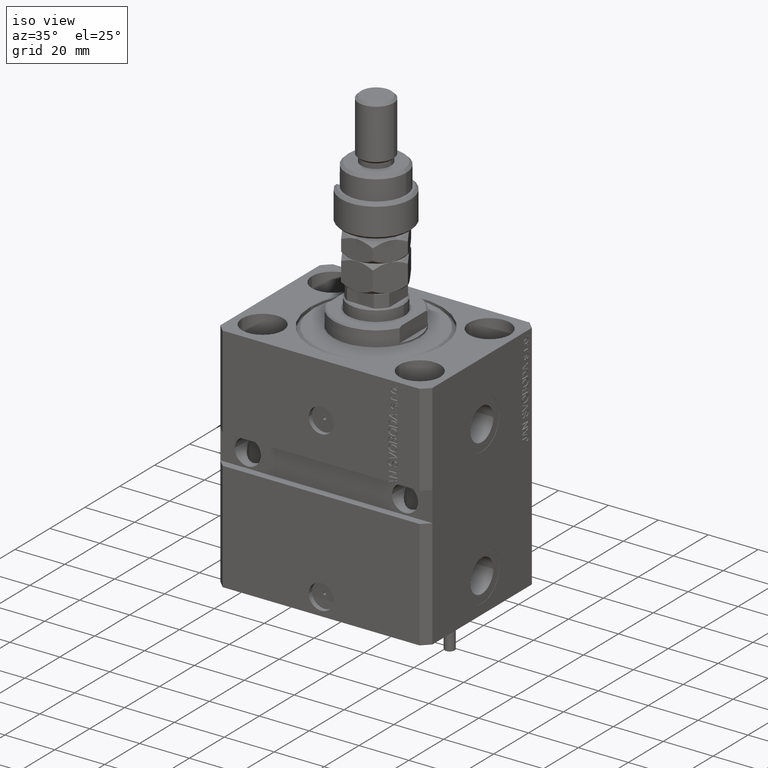
[diagram: clean part render]
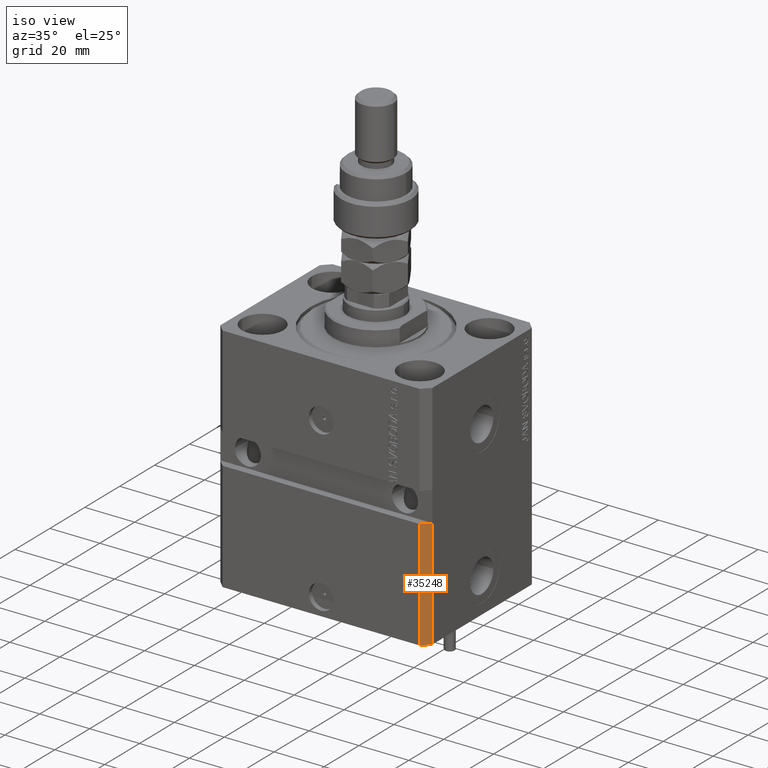
[diagram: same view with one face highlighted and labeled with its STEP entity id]
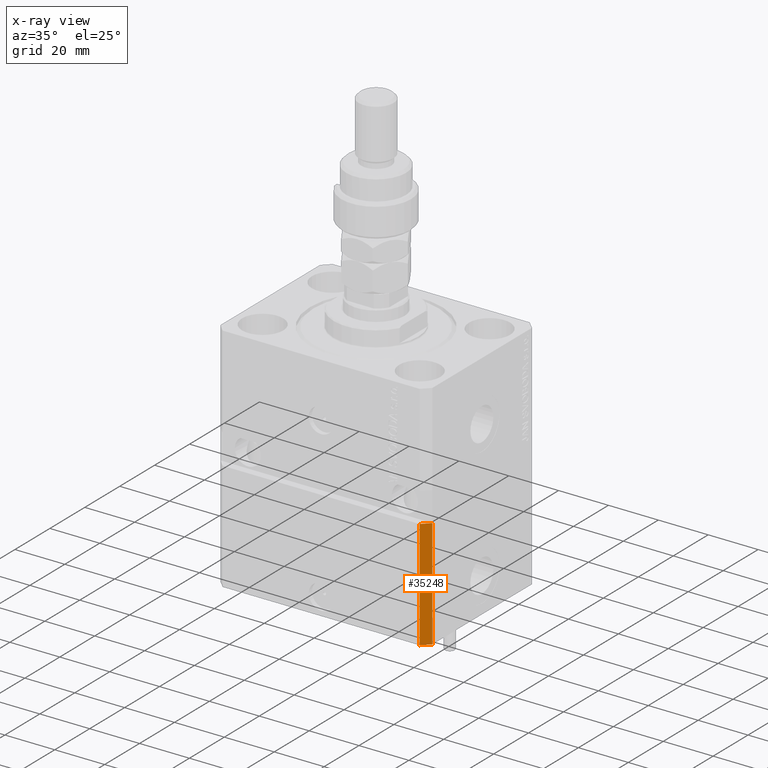
[diagram: x-ray of the same camera — body ghosted, the highlighted face saturated]
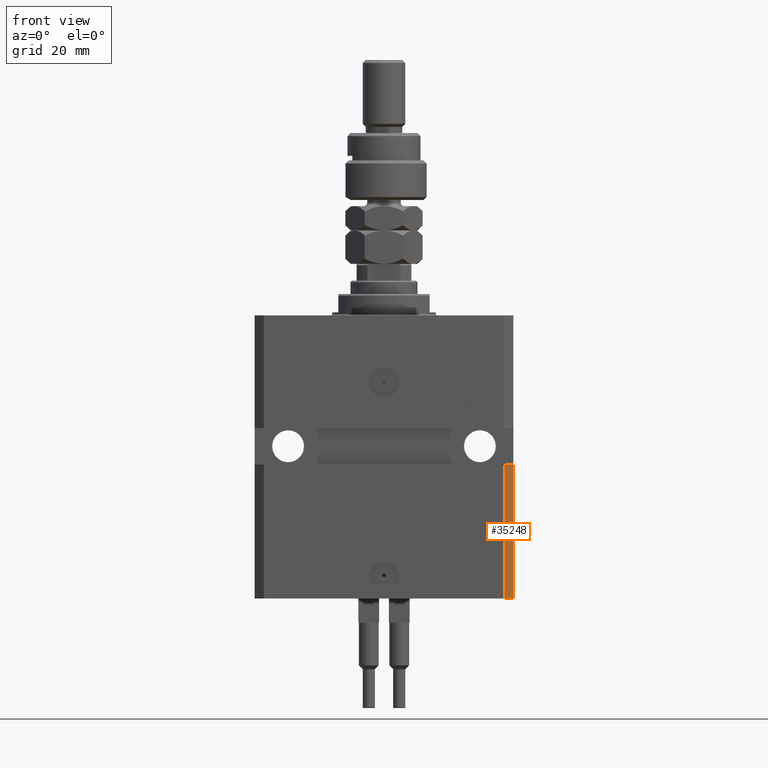
[diagram: same view with one face highlighted and labeled with its STEP entity id]
A machine part, iso view. The second image highlights one B-rep face of the part: STEP entity #35248.
The next image is the same camera in x-ray: the body ghosted, the highlighted face saturated — about 0% of this face is hidden behind the body in this view.
A second angle (front view) of the same face is appended — the face is thin or edge-on in the first view.
In plain terms, the highlighted planar face has unit normal (0.7071, -0.7071, 0).
Its self-contained STEP definition (entity closure, byte-faithful):
#942 = CARTESIAN_POINT ( 'NONE',  ( 39.50000000000000711, -31.50000000000000000, -93.00000000000000000 ) ) ;
#1875 = CARTESIAN_POINT ( 'NONE',  ( 39.50000000000000711, -31.50000000000000000, -48.99999999999999289 ) ) ;
#2702 = EDGE_CURVE ( 'NONE', #24890, #38991, #48162, .T. ) ;
#3266 = ORIENTED_EDGE ( 'NONE', *, *, #24350, .T. ) ;
#3327 = VECTOR ( 'NONE', #49147, 1000.000000000000000 ) ;
#5358 = ORIENTED_EDGE ( 'NONE', *, *, #2702, .T. ) ;
#5930 = DIRECTION ( 'NONE',  ( 0.7071067811865483499, 0.7071067811865466846, 0.000000000000000000 ) ) ;
#6916 = EDGE_LOOP ( 'NONE', ( #14657, #11072, #5358, #3266 ) ) ;
#11072 = ORIENTED_EDGE ( 'NONE', *, *, #20529, .F. ) ;
#12559 = VECTOR ( 'NONE', #21529, 1000.000000000000000 ) ;
#14657 = ORIENTED_EDGE ( 'NONE', *, *, #37455, .F. ) ;
#17291 = LINE ( 'NONE', #1875, #27943 ) ;
#18854 = CARTESIAN_POINT ( 'NONE',  ( 39.50000000000000711, -31.50000000000000000, -93.00000000000000000 ) ) ;
#20529 = EDGE_CURVE ( 'NONE', #24890, #46405, #24926, .T. ) ;
#21131 = CARTESIAN_POINT ( 'NONE',  ( 42.50000000000000711, -28.50000000000000355, -93.00000000000000000 ) ) ;
#21386 = VERTEX_POINT ( 'NONE', #24307 ) ;
#21529 = DIRECTION ( 'NONE',  ( 0.000000000000000000, 0.000000000000000000, 1.000000000000000000 ) ) ;
#21794 = CARTESIAN_POINT ( 'NONE',  ( 39.50000000000000711, -31.50000000000000000, -93.00000000000000000 ) ) ;
#24307 = CARTESIAN_POINT ( 'NONE',  ( 42.50000000000001421, -28.49999999999999289, -48.99999999999999289 ) ) ;
#24329 = CARTESIAN_POINT ( 'NONE',  ( 39.50000000000000711, -31.50000000000000000, -93.00000000000000000 ) ) ;
#24350 = EDGE_CURVE ( 'NONE', #38991, #21386, #25830, .T. ) ;
#24890 = VERTEX_POINT ( 'NONE', #18854 ) ;
#24926 = LINE ( 'NONE', #21794, #12559 ) ;
#25830 = LINE ( 'NONE', #21131, #3327 ) ;
#27943 = VECTOR ( 'NONE', #45304, 1000.000000000000000 ) ;
#32063 = PLANE ( 'NONE',  #49589 ) ;
#32831 = DIRECTION ( 'NONE',  ( 0.7071067811865466846, -0.7071067811865483499, 0.000000000000000000 ) ) ;
#33088 = DIRECTION ( 'NONE',  ( 0.7071067811865483499, 0.7071067811865466846, 0.000000000000000000 ) ) ;
#35248 = ADVANCED_FACE ( 'NONE', ( #48568 ), #32063, .T. ) ;
#37455 = EDGE_CURVE ( 'NONE', #46405, #21386, #17291, .T. ) ;
#38991 = VERTEX_POINT ( 'NONE', #40200 ) ;
#39145 = CARTESIAN_POINT ( 'NONE',  ( 39.50000000000001421, -31.49999999999999289, -48.99999999999999289 ) ) ;
#40200 = CARTESIAN_POINT ( 'NONE',  ( 42.50000000000000711, -28.50000000000000355, -93.00000000000000000 ) ) ;
#45304 = DIRECTION ( 'NONE',  ( 0.7071067811865483499, 0.7071067811865466846, 0.000000000000000000 ) ) ;
#46405 = VERTEX_POINT ( 'NONE', #39145 ) ;
#48162 = LINE ( 'NONE', #24329, #49753 ) ;
#48568 = FACE_OUTER_BOUND ( 'NONE', #6916, .T. ) ;
#49147 = DIRECTION ( 'NONE',  ( 0.000000000000000000, 0.000000000000000000, 1.000000000000000000 ) ) ;
#49589 = AXIS2_PLACEMENT_3D ( 'NONE', #942, #32831, #33088 ) ;
#49753 = VECTOR ( 'NONE', #5930, 1000.000000000000000 ) ;